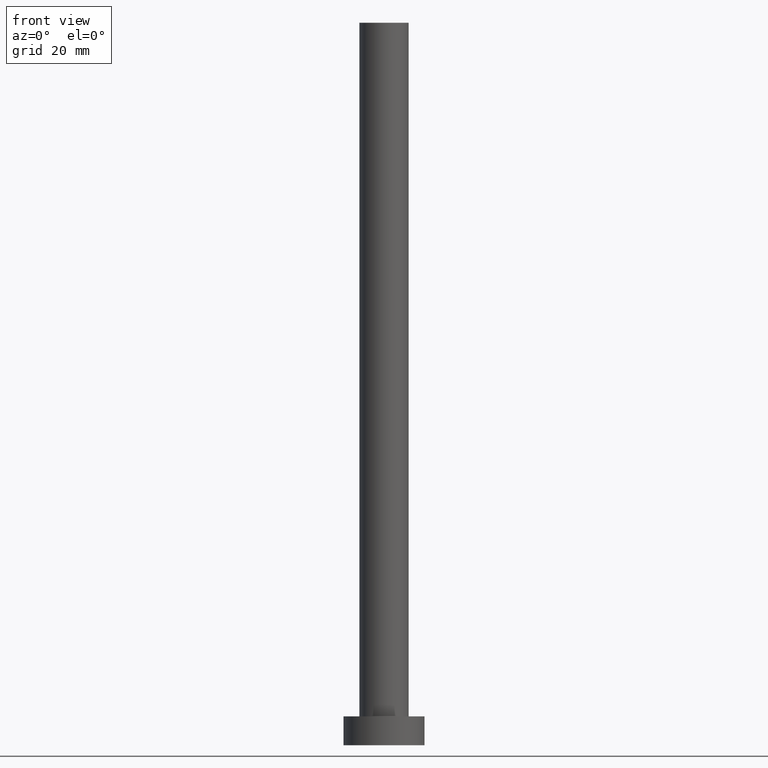
[diagram: clean part render]
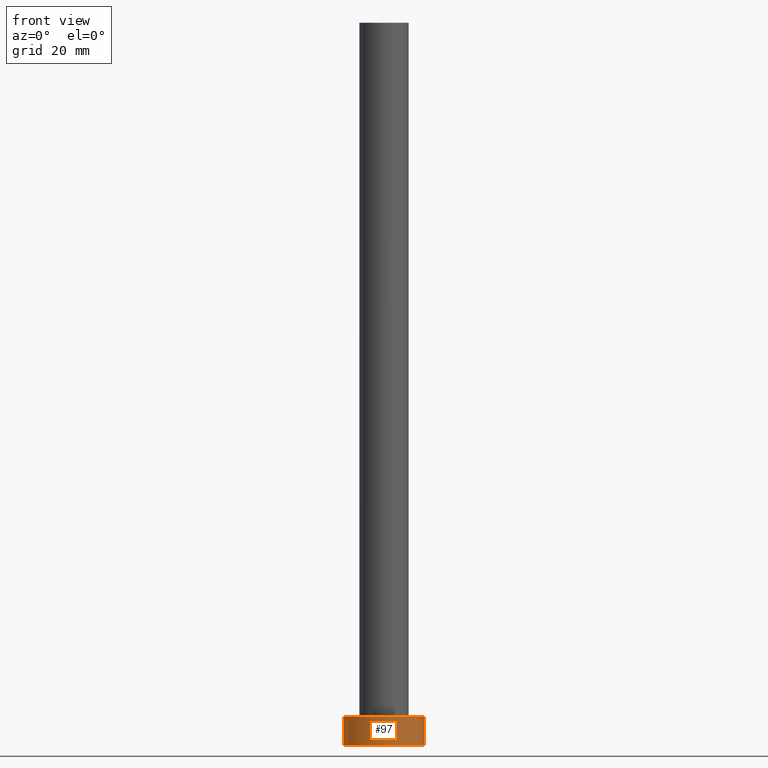
[diagram: same view with one face highlighted and labeled with its STEP entity id]
A machine part, front view. The second image highlights one B-rep face of the part: STEP entity #97.
In plain terms, the highlighted cylindrical surface (partial cylindrical patch) has radius 7 mm, axis along (-0, -0, -1).
Its self-contained STEP definition (entity closure, byte-faithful):
#15 = DIRECTION ( 'NONE',  ( 1.000000000000000000, 0.000000000000000000, 0.000000000000000000 ) ) ;
#17 = CARTESIAN_POINT ( 'NONE',  ( -7.000000000000000000, 0.000000000000000000, 5.000000000000000000 ) ) ;
#20 = ORIENTED_EDGE ( 'NONE', *, *, #27, .F. ) ;
#24 = CARTESIAN_POINT ( 'NONE',  ( 0.000000000000000000, 0.000000000000000000, 5.000000000000000000 ) ) ;
#25 = VERTEX_POINT ( 'NONE', #120 ) ;
#27 = EDGE_CURVE ( 'NONE', #25, #233, #182, .T. ) ;
#38 = DIRECTION ( 'NONE',  ( 0.000000000000000000, 0.000000000000000000, 1.000000000000000000 ) ) ;
#53 = FACE_OUTER_BOUND ( 'NONE', #79, .T. ) ;
#61 = CARTESIAN_POINT ( 'NONE',  ( 0.000000000000000000, 0.000000000000000000, 0.000000000000000000 ) ) ;
#64 = VERTEX_POINT ( 'NONE', #92 ) ;
#69 = LINE ( 'NONE', #137, #134 ) ;
#76 = AXIS2_PLACEMENT_3D ( 'NONE', #61, #187, #150 ) ;
#79 = EDGE_LOOP ( 'NONE', ( #171, #20, #164, #127 ) ) ;
#92 = CARTESIAN_POINT ( 'NONE',  ( 7.000000000000000000, 8.572527594031473190E-16, 0.000000000000000000 ) ) ;
#93 = CARTESIAN_POINT ( 'NONE',  ( 0.000000000000000000, 0.000000000000000000, 5.000000000000000000 ) ) ;
#97 = ADVANCED_FACE ( 'NONE', ( #53 ), #165, .T. ) ;
#103 = VERTEX_POINT ( 'NONE', #145 ) ;
#109 = EDGE_CURVE ( 'NONE', #103, #64, #202, .T. ) ;
#114 = DIRECTION ( 'NONE',  ( -0.000000000000000000, -0.000000000000000000, -1.000000000000000000 ) ) ;
#116 = VECTOR ( 'NONE', #152, 1000.000000000000000 ) ;
#120 = CARTESIAN_POINT ( 'NONE',  ( -7.000000000000000000, 0.000000000000000000, 5.000000000000000000 ) ) ;
#121 = AXIS2_PLACEMENT_3D ( 'NONE', #24, #38, #15 ) ;
#127 = ORIENTED_EDGE ( 'NONE', *, *, #109, .T. ) ;
#132 = EDGE_CURVE ( 'NONE', #25, #103, #194, .T. ) ;
#134 = VECTOR ( 'NONE', #213, 1000.000000000000000 ) ;
#137 = CARTESIAN_POINT ( 'NONE',  ( 7.000000000000000000, 8.572527594031473190E-16, 5.000000000000000000 ) ) ;
#145 = CARTESIAN_POINT ( 'NONE',  ( -7.000000000000000000, 0.000000000000000000, 0.000000000000000000 ) ) ;
#147 = DIRECTION ( 'NONE',  ( -1.000000000000000000, 0.000000000000000000, 0.000000000000000000 ) ) ;
#150 = DIRECTION ( 'NONE',  ( 1.000000000000000000, 0.000000000000000000, 0.000000000000000000 ) ) ;
#151 = EDGE_CURVE ( 'NONE', #233, #64, #69, .T. ) ;
#152 = DIRECTION ( 'NONE',  ( -0.000000000000000000, -0.000000000000000000, -1.000000000000000000 ) ) ;
#164 = ORIENTED_EDGE ( 'NONE', *, *, #132, .T. ) ;
#165 = CYLINDRICAL_SURFACE ( 'NONE', #193, 7.000000000000000000 ) ;
#171 = ORIENTED_EDGE ( 'NONE', *, *, #151, .F. ) ;
#182 = CIRCLE ( 'NONE', #121, 7.000000000000000000 ) ;
#187 = DIRECTION ( 'NONE',  ( 0.000000000000000000, 0.000000000000000000, 1.000000000000000000 ) ) ;
#193 = AXIS2_PLACEMENT_3D ( 'NONE', #93, #114, #147 ) ;
#194 = LINE ( 'NONE', #17, #116 ) ;
#202 = CIRCLE ( 'NONE', #76, 7.000000000000000000 ) ;
#213 = DIRECTION ( 'NONE',  ( -0.000000000000000000, -0.000000000000000000, -1.000000000000000000 ) ) ;
#233 = VERTEX_POINT ( 'NONE', #238 ) ;
#238 = CARTESIAN_POINT ( 'NONE',  ( 7.000000000000000000, 8.572527594031473190E-16, 5.000000000000000000 ) ) ;